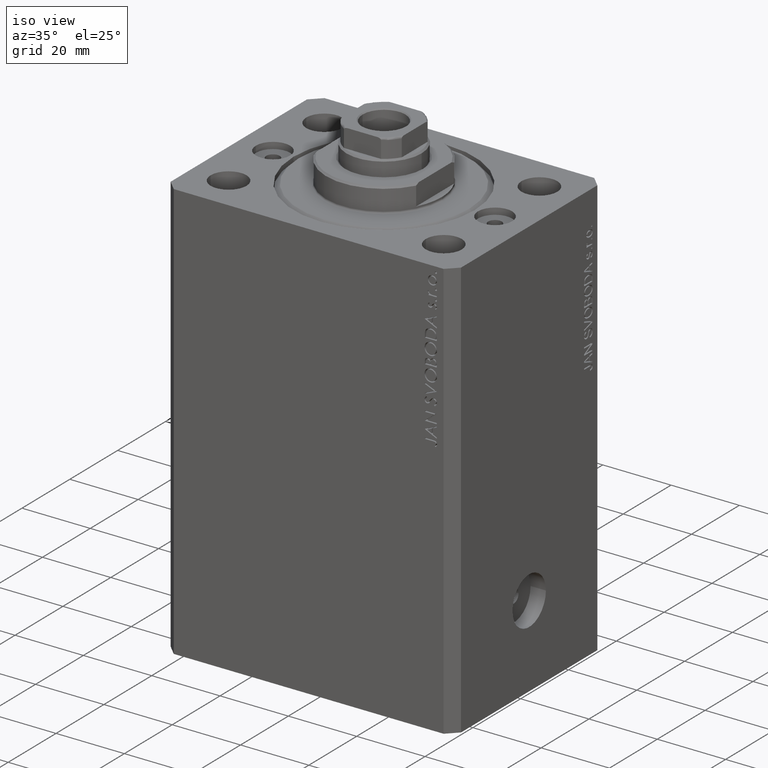
[diagram: clean part render]
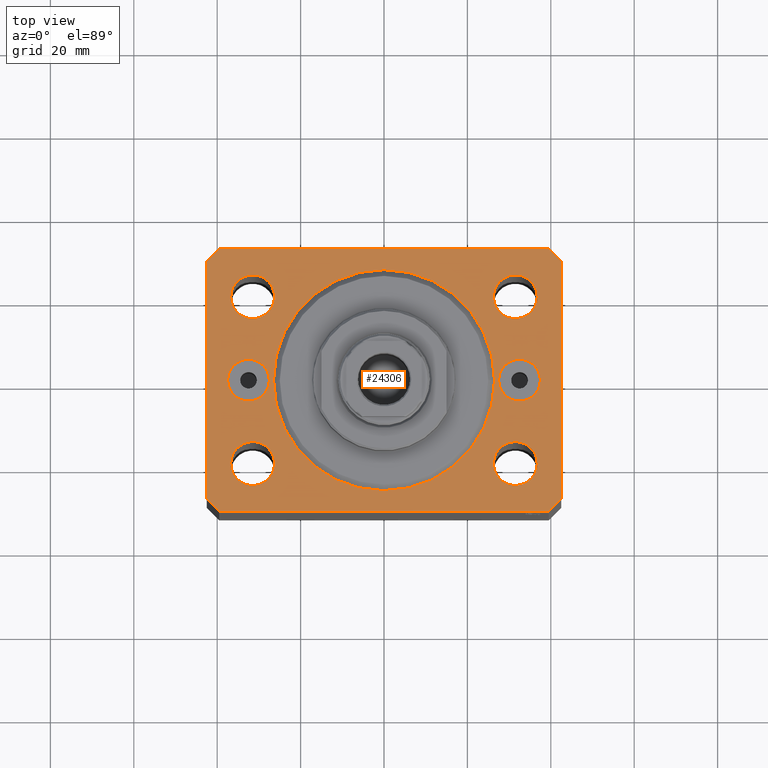
[diagram: tour spotlight — one face highlighted and labeled with its STEP entity id]
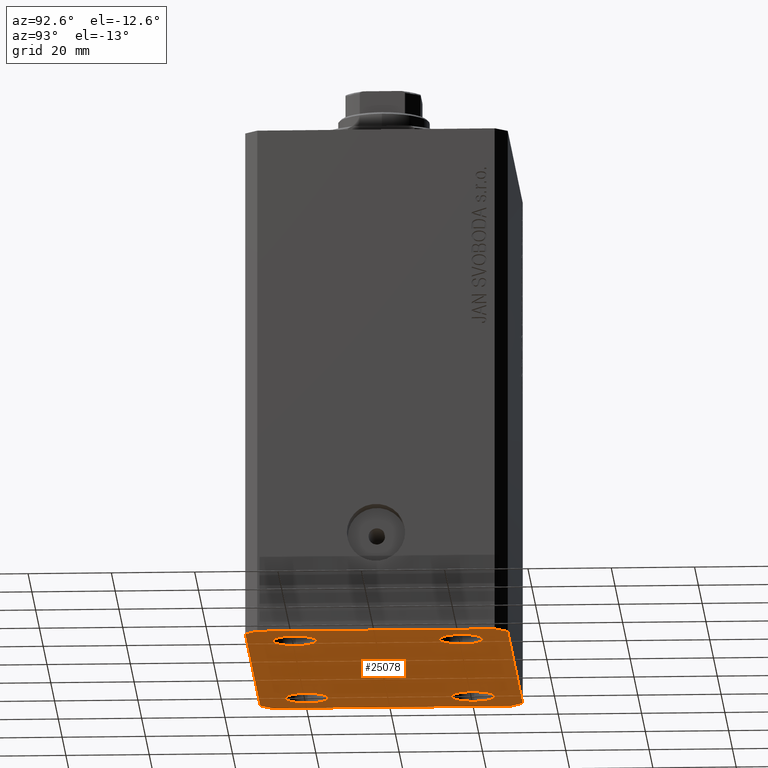
[diagram: tour spotlight — one face highlighted and labeled with its STEP entity id]
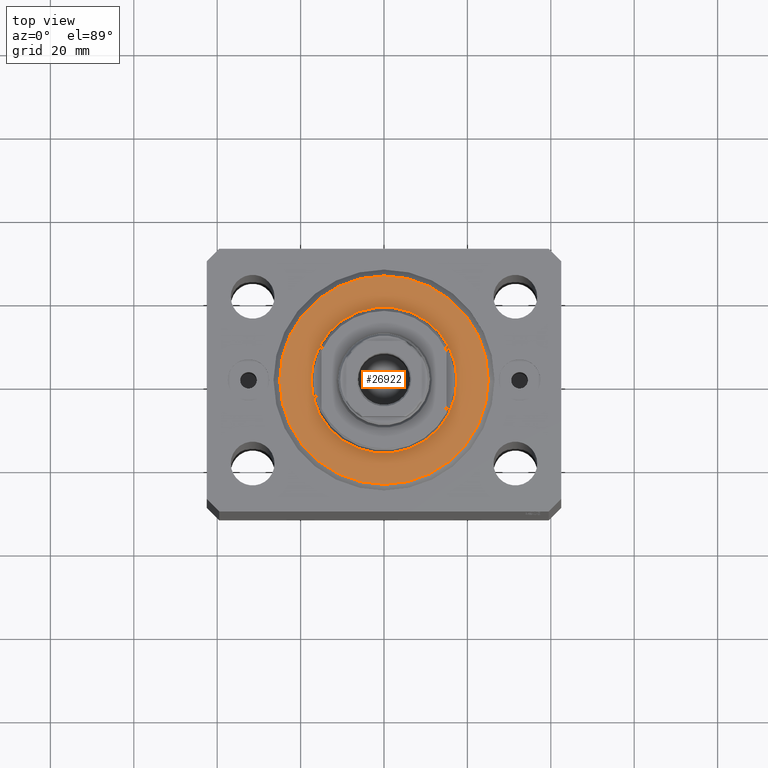
[diagram: tour spotlight — one face highlighted and labeled with its STEP entity id]
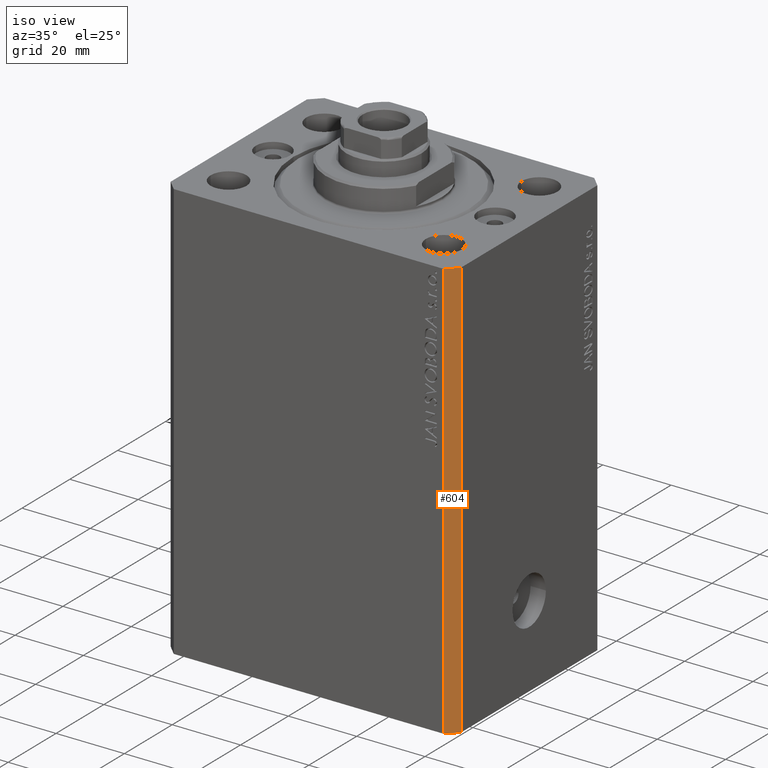
[diagram: tour spotlight — one face highlighted and labeled with its STEP entity id]
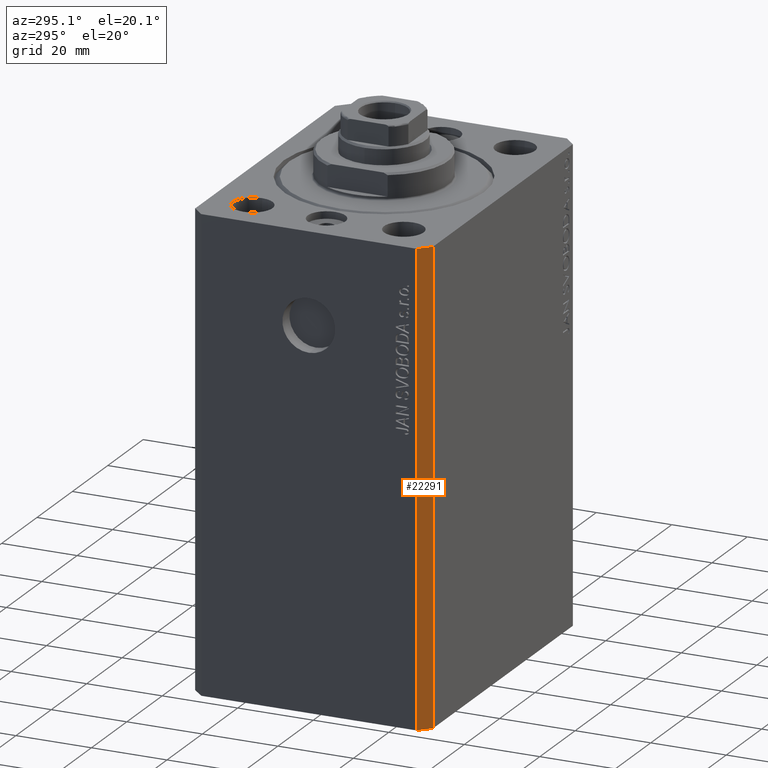
[diagram: tour spotlight — one face highlighted and labeled with its STEP entity id]
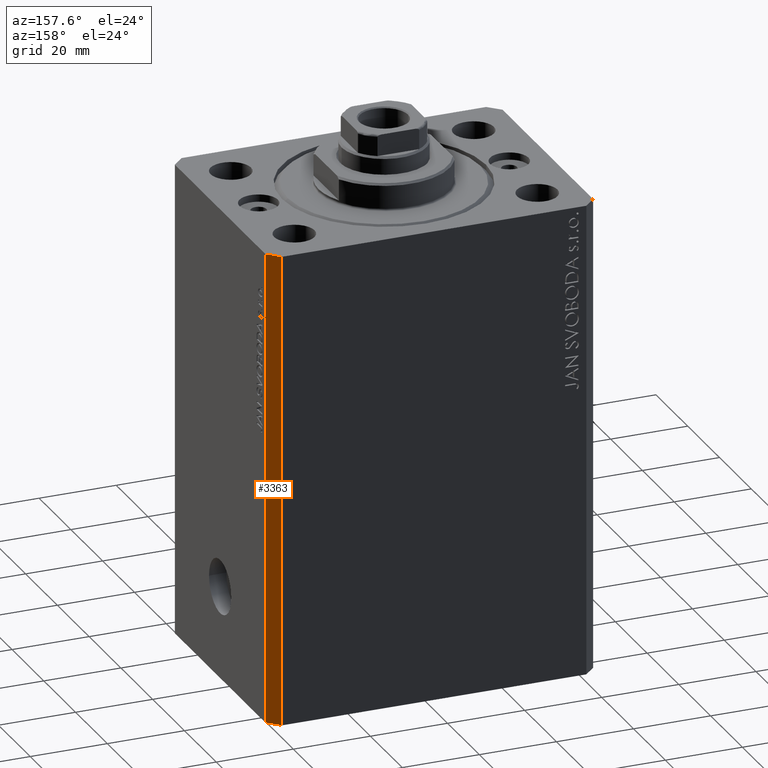
[diagram: tour spotlight — one face highlighted and labeled with its STEP entity id]
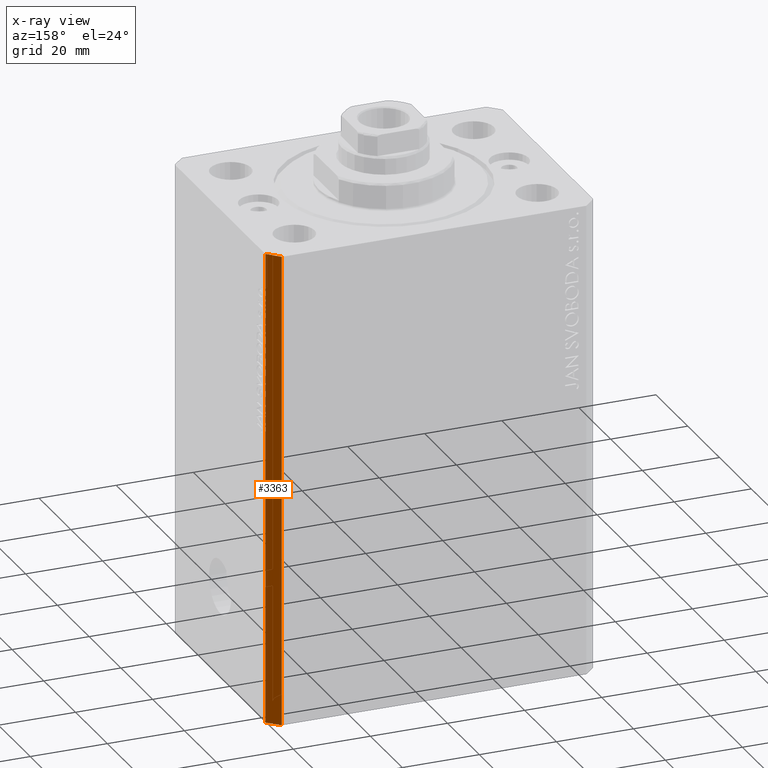
[diagram: x-ray of the same camera — body ghosted, this tour face saturated]
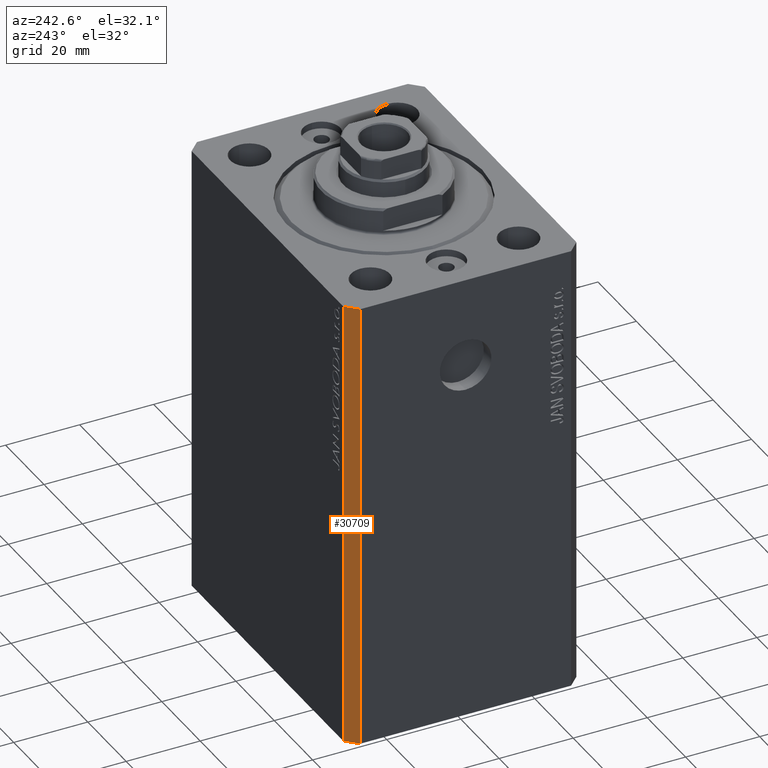
[diagram: tour spotlight — one face highlighted and labeled with its STEP entity id]
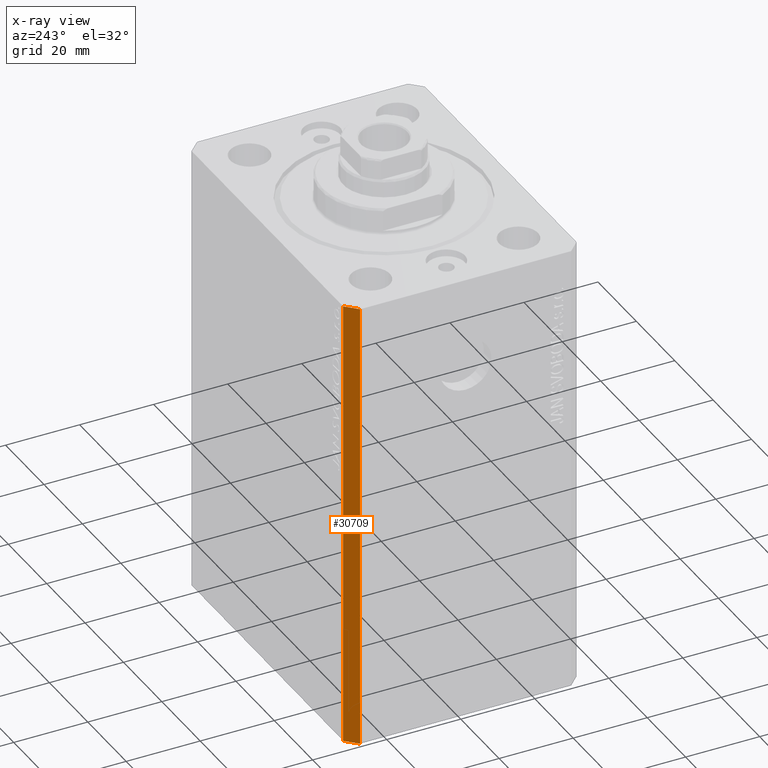
[diagram: x-ray of the same camera — body ghosted, this tour face saturated]
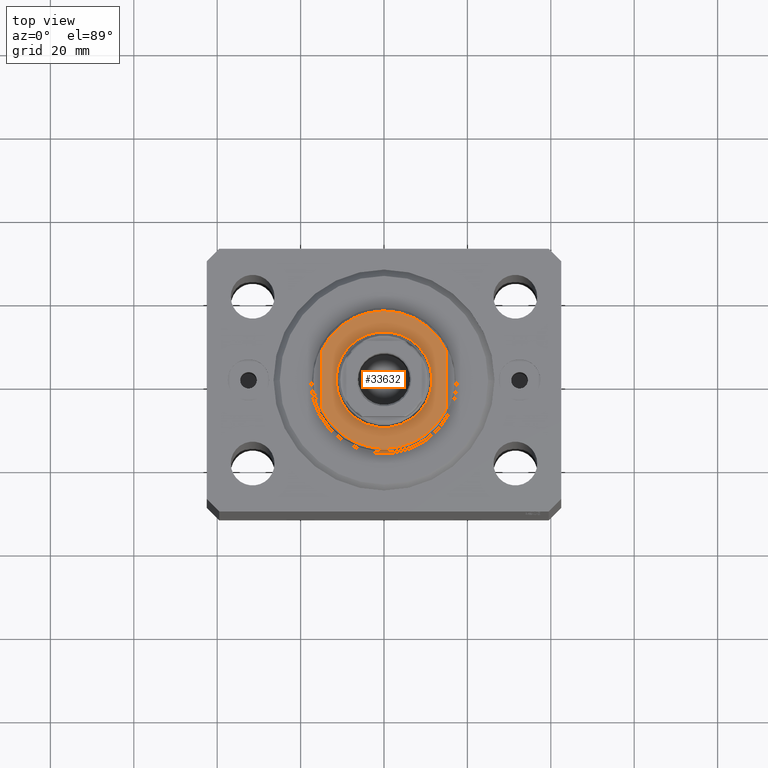
[diagram: tour spotlight — one face highlighted and labeled with its STEP entity id]
A machine part: a face-by-face anatomy tour. The part has 862 B-rep faces; the first image is the clean iso view, then the 8 largest visible faces are spotlighted one at a time (largest first), each with its STEP entity span.

Face 1 — top view, entity #24306. In plain terms, the highlighted planar face has unit normal (0, 0, 1).
Definition (entity closure, byte-faithful):
#16 = AXIS2_PLACEMENT_3D ( 'NONE', #7715, #18470, #22264 ) ;
#113 = AXIS2_PLACEMENT_3D ( 'NONE', #39409, #5545, #26396 ) ;
#278 = DIRECTION ( 'NONE',  ( 1.000000000000000000, 0.000000000000000000, 0.000000000000000000 ) ) ;
#521 = EDGE_CURVE ( 'NONE', #5828, #2277, #25285, .T. ) ;
#733 = ORIENTED_EDGE ( 'NONE', *, *, #9670, .F. ) ;
#884 = CARTESIAN_POINT ( 'NONE',  ( -32.50000000000000000, 0.000000000000000000, 0.000000000000000000 ) ) ;
#2246 = CIRCLE ( 'NONE', #113, 5.250000000000000888 ) ;
#2277 = VERTEX_POINT ( 'NONE', #24110 ) ;
#2566 = VERTEX_POINT ( 'NONE', #43569 ) ;
#3187 = CARTESIAN_POINT ( 'NONE',  ( -31.49999999999999289, -20.00000000000000355, 0.000000000000000000 ) ) ;
#3909 = AXIS2_PLACEMENT_3D ( 'NONE', #15612, #32411, #8886 ) ;
#4245 = DIRECTION ( 'NONE',  ( 1.000000000000000000, 0.000000000000000000, 0.000000000000000000 ) ) ;
#4256 = CIRCLE ( 'NONE', #43629, 5.249999999999997335 ) ;
#4271 = DIRECTION ( 'NONE',  ( 0.000000000000000000, 0.000000000000000000, 1.000000000000000000 ) ) ;
#4359 = LINE ( 'NONE', #5022, #9040 ) ;
#4491 = FACE_BOUND ( 'NONE', #6645, .T. ) ;
#4550 = DIRECTION ( 'NONE',  ( 0.000000000000000000, 0.000000000000000000, 1.000000000000000000 ) ) ;
#4684 = DIRECTION ( 'NONE',  ( 0.000000000000000000, -0.000000000000000000, -1.000000000000000000 ) ) ;
#4774 = EDGE_CURVE ( 'NONE', #2566, #32342, #9643, .T. ) ;
#5022 = CARTESIAN_POINT ( 'NONE',  ( 42.50000000000000711, -28.50000000000000355, 0.000000000000000000 ) ) ;
#5195 = VERTEX_POINT ( 'NONE', #23500 ) ;
#5545 = DIRECTION ( 'NONE',  ( 0.000000000000000000, 0.000000000000000000, 1.000000000000000000 ) ) ;
#5764 = VERTEX_POINT ( 'NONE', #31653 ) ;
#5828 = VERTEX_POINT ( 'NONE', #34816 ) ;
#5869 = CARTESIAN_POINT ( 'NONE',  ( 39.50000000000000711, -31.50000000000000000, 0.000000000000000000 ) ) ;
#6104 = ORIENTED_EDGE ( 'NONE', *, *, #27252, .F. ) ;
#6546 = AXIS2_PLACEMENT_3D ( 'NONE', #42002, #4550, #11295 ) ;
#6633 = EDGE_CURVE ( 'NONE', #26063, #5764, #14034, .T. ) ;
#6645 = EDGE_LOOP ( 'NONE', ( #40448, #15351 ) ) ;
#7124 = LINE ( 'NONE', #23502, #36913 ) ;
#7240 = CARTESIAN_POINT ( 'NONE',  ( -42.50000000000000000, 28.50000000000000000, 0.000000000000000000 ) ) ;
#7491 = ORIENTED_EDGE ( 'NONE', *, *, #34097, .T. ) ;
#7548 = DIRECTION ( 'NONE',  ( 0.000000000000000000, 0.000000000000000000, 1.000000000000000000 ) ) ;
#7653 = DIRECTION ( 'NONE',  ( 1.000000000000000000, 0.000000000000000000, -0.000000000000000000 ) ) ;
#7657 = AXIS2_PLACEMENT_3D ( 'NONE', #20237, #30757, #278 ) ;
#7715 = CARTESIAN_POINT ( 'NONE',  ( -31.49999999999999289, -20.00000000000000355, 0.000000000000000000 ) ) ;
#8132 = EDGE_CURVE ( 'NONE', #5195, #22188, #18868, .T. ) ;
#8211 = CARTESIAN_POINT ( 'NONE',  ( -39.50000000000000711, 31.50000000000000000, 0.000000000000000000 ) ) ;
#8233 = CARTESIAN_POINT ( 'NONE',  ( 42.50000000000000711, -28.50000000000000355, 0.000000000000000000 ) ) ;
#8344 = CARTESIAN_POINT ( 'NONE',  ( 36.74999999999999289, -20.00000000000000355, 0.000000000000000000 ) ) ;
#8650 = CARTESIAN_POINT ( 'NONE',  ( -42.50000000000000000, 28.50000000000000000, 0.000000000000000000 ) ) ;
#8749 = VERTEX_POINT ( 'NONE', #8233 ) ;
#8886 = DIRECTION ( 'NONE',  ( 1.000000000000000000, 0.000000000000000000, 0.000000000000000000 ) ) ;
#9036 = DIRECTION ( 'NONE',  ( 0.000000000000000000, 0.000000000000000000, 1.000000000000000000 ) ) ;
#9040 = VECTOR ( 'NONE', #27912, 1000.000000000000000 ) ;
#9571 = EDGE_LOOP ( 'NONE', ( #29423, #25060 ) ) ;
#9643 = CIRCLE ( 'NONE', #3909, 5.249999999999997335 ) ;
#9670 = EDGE_CURVE ( 'NONE', #18338, #34957, #43429, .T. ) ;
#9727 = ORIENTED_EDGE ( 'NONE', *, *, #24132, .F. ) ;
#9901 = DIRECTION ( 'NONE',  ( 0.000000000000000000, 0.000000000000000000, 1.000000000000000000 ) ) ;
#9968 = ORIENTED_EDGE ( 'NONE', *, *, #24770, .F. ) ;
#10129 = CIRCLE ( 'NONE', #17298, 26.50000000000000355 ) ;
#11118 = EDGE_CURVE ( 'NONE', #29073, #32457, #7124, .T. ) ;
#11243 = PLANE ( 'NONE',  #30152 ) ;
#11295 = DIRECTION ( 'NONE',  ( 1.000000000000000000, 0.000000000000000000, 0.000000000000000000 ) ) ;
#11580 = ORIENTED_EDGE ( 'NONE', *, *, #23966, .F. ) ;
#11675 = FACE_BOUND ( 'NONE', #17907, .T. ) ;
#11908 = ORIENTED_EDGE ( 'NONE', *, *, #26984, .T. ) ;
#11965 = VERTEX_POINT ( 'NONE', #7240 ) ;
#12026 = CARTESIAN_POINT ( 'NONE',  ( 26.50000000000000355, 0.000000000000000000, 0.000000000000000000 ) ) ;
#12178 = EDGE_CURVE ( 'NONE', #36154, #16676, #16912, .T. ) ;
#12279 = EDGE_LOOP ( 'NONE', ( #11580, #9968 ) ) ;
#12436 = EDGE_CURVE ( 'NONE', #8749, #29073, #4359, .T. ) ;
#13207 = VERTEX_POINT ( 'NONE', #25059 ) ;
#13492 = VERTEX_POINT ( 'NONE', #5869 ) ;
#13548 = ORIENTED_EDGE ( 'NONE', *, *, #6633, .F. ) ;
#13740 = CARTESIAN_POINT ( 'NONE',  ( 0.000000000000000000, 0.000000000000000000, 0.000000000000000000 ) ) ;
#14034 = CIRCLE ( 'NONE', #17583, 26.50000000000000355 ) ;
#14777 = CARTESIAN_POINT ( 'NONE',  ( -39.50000000000000711, 31.50000000000000000, 0.000000000000000000 ) ) ;
#14818 = FACE_BOUND ( 'NONE', #23785, .T. ) ;
#14861 = EDGE_CURVE ( 'NONE', #20549, #19827, #33407, .T. ) ;
#14936 = DIRECTION ( 'NONE',  ( -0.7071067811865471286, -0.7071067811865479058, 0.000000000000000000 ) ) ;
#14938 = DIRECTION ( 'NONE',  ( 1.000000000000000000, 0.000000000000000000, 0.000000000000000000 ) ) ;
#14995 = DIRECTION ( 'NONE',  ( 1.000000000000000000, 0.000000000000000000, 0.000000000000000000 ) ) ;
#15181 = VECTOR ( 'NONE', #16479, 1000.000000000000000 ) ;
#15351 = ORIENTED_EDGE ( 'NONE', *, *, #521, .T. ) ;
#15508 = DIRECTION ( 'NONE',  ( 0.7071067811865471286, -0.7071067811865479058, 0.000000000000000000 ) ) ;
#15612 = CARTESIAN_POINT ( 'NONE',  ( 31.49999999999999289, -20.00000000000000355, 0.000000000000000000 ) ) ;
#15856 = CIRCLE ( 'NONE', #6546, 5.250000000000000888 ) ;
#15948 = EDGE_CURVE ( 'NONE', #22188, #13492, #28480, .T. ) ;
#16479 = DIRECTION ( 'NONE',  ( 0.000000000000000000, -1.000000000000000000, 0.000000000000000000 ) ) ;
#16519 = VECTOR ( 'NONE', #22653, 1000.000000000000000 ) ;
#16676 = VERTEX_POINT ( 'NONE', #18726 ) ;
#16912 = CIRCLE ( 'NONE', #22628, 5.000000000000000888 ) ;
#16937 = CARTESIAN_POINT ( 'NONE',  ( -27.50000000000000000, 0.000000000000000000, 0.000000000000000000 ) ) ;
#17111 = CARTESIAN_POINT ( 'NONE',  ( -36.75000000000000000, 19.99999999999999645, 0.000000000000000000 ) ) ;
#17121 = CARTESIAN_POINT ( 'NONE',  ( -26.24999999999999289, -20.00000000000000355, 0.000000000000000000 ) ) ;
#17298 = AXIS2_PLACEMENT_3D ( 'NONE', #13740, #21721, #14995 ) ;
#17502 = DIRECTION ( 'NONE',  ( 0.000000000000000000, 0.000000000000000000, 1.000000000000000000 ) ) ;
#17583 = AXIS2_PLACEMENT_3D ( 'NONE', #37666, #7548, #14938 ) ;
#17907 = EDGE_LOOP ( 'NONE', ( #13548, #29794 ) ) ;
#17960 = FACE_BOUND ( 'NONE', #26102, .T. ) ;
#18063 = AXIS2_PLACEMENT_3D ( 'NONE', #22325, #36001, #18740 ) ;
#18301 = LINE ( 'NONE', #8211, #32197 ) ;
#18338 = VERTEX_POINT ( 'NONE', #17121 ) ;
#18349 = VECTOR ( 'NONE', #15508, 1000.000000000000000 ) ;
#18470 = DIRECTION ( 'NONE',  ( 0.000000000000000000, 0.000000000000000000, 1.000000000000000000 ) ) ;
#18726 = CARTESIAN_POINT ( 'NONE',  ( -37.50000000000000000, 6.123233995736768255E-16, 0.000000000000000000 ) ) ;
#18740 = DIRECTION ( 'NONE',  ( 1.000000000000000000, 0.000000000000000000, 0.000000000000000000 ) ) ;
#18868 = LINE ( 'NONE', #29610, #18349 ) ;
#18916 = CARTESIAN_POINT ( 'NONE',  ( 39.50000000000056843, 31.49999999999999289, 0.000000000000000000 ) ) ;
#19421 = EDGE_CURVE ( 'NONE', #19827, #20549, #4256, .T. ) ;
#19486 = ORIENTED_EDGE ( 'NONE', *, *, #15948, .T. ) ;
#19827 = VERTEX_POINT ( 'NONE', #35317 ) ;
#20234 = DIRECTION ( 'NONE',  ( 1.000000000000000000, 0.000000000000000000, 0.000000000000000000 ) ) ;
#20237 = CARTESIAN_POINT ( 'NONE',  ( 31.50000000000000000, 19.99999999999999289, 0.000000000000000000 ) ) ;
#20301 = AXIS2_PLACEMENT_3D ( 'NONE', #41680, #34294, #21506 ) ;
#20381 = CARTESIAN_POINT ( 'NONE',  ( 36.75000000000000000, 19.99999999999999289, 0.000000000000000000 ) ) ;
#20549 = VERTEX_POINT ( 'NONE', #20381 ) ;
#21330 = FACE_BOUND ( 'NONE', #9571, .T. ) ;
#21506 = DIRECTION ( 'NONE',  ( 1.000000000000000000, 0.000000000000000000, 0.000000000000000000 ) ) ;
#21721 = DIRECTION ( 'NONE',  ( 0.000000000000000000, 0.000000000000000000, 1.000000000000000000 ) ) ;
#22188 = VERTEX_POINT ( 'NONE', #30516 ) ;
#22264 = DIRECTION ( 'NONE',  ( 1.000000000000000000, 0.000000000000000000, 0.000000000000000000 ) ) ;
#22325 = CARTESIAN_POINT ( 'NONE',  ( -32.50000000000000000, 0.000000000000000000, 0.000000000000000000 ) ) ;
#22502 = LINE ( 'NONE', #18916, #36748 ) ;
#22628 = AXIS2_PLACEMENT_3D ( 'NONE', #884, #17502, #34759 ) ;
#22653 = DIRECTION ( 'NONE',  ( 0.7071067811865483499, 0.7071067811865466846, 0.000000000000000000 ) ) ;
#23434 = VECTOR ( 'NONE', #42598, 1000.000000000000000 ) ;
#23500 = CARTESIAN_POINT ( 'NONE',  ( -42.50000000000000000, -28.50000000000000000, 0.000000000000000000 ) ) ;
#23502 = CARTESIAN_POINT ( 'NONE',  ( 42.50000000000051870, 28.49999999999995381, 0.000000000000000000 ) ) ;
#23730 = CIRCLE ( 'NONE', #24440, 5.249999999999997335 ) ;
#23785 = EDGE_LOOP ( 'NONE', ( #35544, #43417 ) ) ;
#23884 = AXIS2_PLACEMENT_3D ( 'NONE', #41917, #4684, #4245 ) ;
#23966 = EDGE_CURVE ( 'NONE', #13207, #36318, #15856, .T. ) ;
#24110 = CARTESIAN_POINT ( 'NONE',  ( 37.50000000000000000, 0.000000000000000000, 0.000000000000000000 ) ) ;
#24132 = EDGE_CURVE ( 'NONE', #32342, #2566, #23730, .T. ) ;
#24306 = ADVANCED_FACE ( 'NONE', ( #41722, #38579, #14818, #17960, #42384, #11675, #21330, #4491 ), #11243, .T. ) ;
#24440 = AXIS2_PLACEMENT_3D ( 'NONE', #25845, #9036, #39749 ) ;
#24770 = EDGE_CURVE ( 'NONE', #36318, #13207, #2246, .T. ) ;
#25059 = CARTESIAN_POINT ( 'NONE',  ( -26.25000000000000000, 19.99999999999999645, 0.000000000000000000 ) ) ;
#25060 = ORIENTED_EDGE ( 'NONE', *, *, #34081, .F. ) ;
#25129 = ORIENTED_EDGE ( 'NONE', *, *, #12436, .T. ) ;
#25285 = CIRCLE ( 'NONE', #20301, 4.999999999999997335 ) ;
#25691 = LINE ( 'NONE', #8650, #15181 ) ;
#25845 = CARTESIAN_POINT ( 'NONE',  ( 31.49999999999999289, -20.00000000000000355, 0.000000000000000000 ) ) ;
#26063 = VERTEX_POINT ( 'NONE', #12026 ) ;
#26102 = EDGE_LOOP ( 'NONE', ( #9727, #31175 ) ) ;
#26396 = DIRECTION ( 'NONE',  ( 1.000000000000000000, 0.000000000000000000, 0.000000000000000000 ) ) ;
#26984 = EDGE_CURVE ( 'NONE', #27933, #11965, #18301, .T. ) ;
#27252 = EDGE_CURVE ( 'NONE', #34957, #18338, #27914, .T. ) ;
#27424 = ORIENTED_EDGE ( 'NONE', *, *, #36300, .T. ) ;
#27828 = CARTESIAN_POINT ( 'NONE',  ( 0.000000000000000000, 0.000000000000000000, 0.000000000000000000 ) ) ;
#27912 = DIRECTION ( 'NONE',  ( 8.886653596232072440E-15, 1.000000000000000000, 0.000000000000000000 ) ) ;
#27914 = CIRCLE ( 'NONE', #16, 5.250000000000000888 ) ;
#27933 = VERTEX_POINT ( 'NONE', #14777 ) ;
#28433 = EDGE_LOOP ( 'NONE', ( #27424, #11908, #7491, #40137, #19486, #37714, #25129, #30239 ) ) ;
#28480 = LINE ( 'NONE', #38794, #23434 ) ;
#29073 = VERTEX_POINT ( 'NONE', #43183 ) ;
#29423 = ORIENTED_EDGE ( 'NONE', *, *, #12178, .F. ) ;
#29474 = EDGE_CURVE ( 'NONE', #13492, #8749, #29807, .T. ) ;
#29610 = CARTESIAN_POINT ( 'NONE',  ( -42.50000000000000000, -28.50000000000000000, 0.000000000000000000 ) ) ;
#29794 = ORIENTED_EDGE ( 'NONE', *, *, #30321, .F. ) ;
#29807 = LINE ( 'NONE', #35880, #16519 ) ;
#30050 = CARTESIAN_POINT ( 'NONE',  ( 39.50000000000056843, 31.49999999999999289, 0.000000000000000000 ) ) ;
#30128 = EDGE_LOOP ( 'NONE', ( #733, #6104 ) ) ;
#30152 = AXIS2_PLACEMENT_3D ( 'NONE', #27828, #4271, #7653 ) ;
#30239 = ORIENTED_EDGE ( 'NONE', *, *, #11118, .T. ) ;
#30321 = EDGE_CURVE ( 'NONE', #5764, #26063, #10129, .T. ) ;
#30516 = CARTESIAN_POINT ( 'NONE',  ( -39.50000000000000711, -31.50000000000000000, 0.000000000000000000 ) ) ;
#30757 = DIRECTION ( 'NONE',  ( 0.000000000000000000, 0.000000000000000000, 1.000000000000000000 ) ) ;
#31175 = ORIENTED_EDGE ( 'NONE', *, *, #4774, .F. ) ;
#31266 = AXIS2_PLACEMENT_3D ( 'NONE', #3187, #44224, #20234 ) ;
#31653 = CARTESIAN_POINT ( 'NONE',  ( -26.50000000000000355, 3.245314017740485765E-15, 0.000000000000000000 ) ) ;
#32197 = VECTOR ( 'NONE', #14936, 1000.000000000000000 ) ;
#32342 = VERTEX_POINT ( 'NONE', #8344 ) ;
#32411 = DIRECTION ( 'NONE',  ( 0.000000000000000000, 0.000000000000000000, 1.000000000000000000 ) ) ;
#32457 = VERTEX_POINT ( 'NONE', #30050 ) ;
#33407 = CIRCLE ( 'NONE', #7657, 5.249999999999997335 ) ;
#34081 = EDGE_CURVE ( 'NONE', #16676, #36154, #34541, .T. ) ;
#34097 = EDGE_CURVE ( 'NONE', #11965, #5195, #25691, .T. ) ;
#34294 = DIRECTION ( 'NONE',  ( 0.000000000000000000, -0.000000000000000000, -1.000000000000000000 ) ) ;
#34541 = CIRCLE ( 'NONE', #18063, 5.000000000000000888 ) ;
#34759 = DIRECTION ( 'NONE',  ( 1.000000000000000000, 0.000000000000000000, 0.000000000000000000 ) ) ;
#34816 = CARTESIAN_POINT ( 'NONE',  ( 27.50000000000000355, 6.123233995736762338E-16, 0.000000000000000000 ) ) ;
#34957 = VERTEX_POINT ( 'NONE', #42513 ) ;
#35317 = CARTESIAN_POINT ( 'NONE',  ( 26.25000000000000355, 19.99999999999999289, 0.000000000000000000 ) ) ;
#35544 = ORIENTED_EDGE ( 'NONE', *, *, #14861, .F. ) ;
#35880 = CARTESIAN_POINT ( 'NONE',  ( 39.50000000000000711, -31.50000000000000000, 0.000000000000000000 ) ) ;
#36001 = DIRECTION ( 'NONE',  ( 0.000000000000000000, 0.000000000000000000, 1.000000000000000000 ) ) ;
#36154 = VERTEX_POINT ( 'NONE', #16937 ) ;
#36300 = EDGE_CURVE ( 'NONE', #32457, #27933, #22502, .T. ) ;
#36318 = VERTEX_POINT ( 'NONE', #17111 ) ;
#36748 = VECTOR ( 'NONE', #43347, 1000.000000000000000 ) ;
#36913 = VECTOR ( 'NONE', #44121, 1000.000000000000114 ) ;
#37643 = EDGE_CURVE ( 'NONE', #2277, #5828, #41772, .T. ) ;
#37666 = CARTESIAN_POINT ( 'NONE',  ( 0.000000000000000000, 0.000000000000000000, 0.000000000000000000 ) ) ;
#37714 = ORIENTED_EDGE ( 'NONE', *, *, #29474, .T. ) ;
#38579 = FACE_BOUND ( 'NONE', #12279, .T. ) ;
#38794 = CARTESIAN_POINT ( 'NONE',  ( -39.50000000000000711, -31.50000000000000000, 0.000000000000000000 ) ) ;
#39409 = CARTESIAN_POINT ( 'NONE',  ( -31.50000000000000000, 19.99999999999999645, 0.000000000000000000 ) ) ;
#39749 = DIRECTION ( 'NONE',  ( 1.000000000000000000, 0.000000000000000000, 0.000000000000000000 ) ) ;
#40137 = ORIENTED_EDGE ( 'NONE', *, *, #8132, .T. ) ;
#40175 = DIRECTION ( 'NONE',  ( 1.000000000000000000, 0.000000000000000000, 0.000000000000000000 ) ) ;
#40448 = ORIENTED_EDGE ( 'NONE', *, *, #37643, .T. ) ;
#40613 = CARTESIAN_POINT ( 'NONE',  ( 31.50000000000000000, 19.99999999999999289, 0.000000000000000000 ) ) ;
#41680 = CARTESIAN_POINT ( 'NONE',  ( 32.50000000000000000, 0.000000000000000000, 0.000000000000000000 ) ) ;
#41722 = FACE_OUTER_BOUND ( 'NONE', #28433, .T. ) ;
#41772 = CIRCLE ( 'NONE', #23884, 4.999999999999997335 ) ;
#41917 = CARTESIAN_POINT ( 'NONE',  ( 32.50000000000000000, 0.000000000000000000, 0.000000000000000000 ) ) ;
#42002 = CARTESIAN_POINT ( 'NONE',  ( -31.50000000000000000, 19.99999999999999645, 0.000000000000000000 ) ) ;
#42384 = FACE_BOUND ( 'NONE', #30128, .T. ) ;
#42513 = CARTESIAN_POINT ( 'NONE',  ( -36.74999999999999289, -20.00000000000000355, 0.000000000000000000 ) ) ;
#42598 = DIRECTION ( 'NONE',  ( 1.000000000000000000, 0.000000000000000000, 0.000000000000000000 ) ) ;
#43183 = CARTESIAN_POINT ( 'NONE',  ( 42.50000000000051870, 28.49999999999995381, 0.000000000000000000 ) ) ;
#43347 = DIRECTION ( 'NONE',  ( -1.000000000000000000, 8.783410004945795812E-17, 0.000000000000000000 ) ) ;
#43417 = ORIENTED_EDGE ( 'NONE', *, *, #19421, .F. ) ;
#43429 = CIRCLE ( 'NONE', #31266, 5.250000000000000888 ) ;
#43569 = CARTESIAN_POINT ( 'NONE',  ( 26.24999999999999645, -20.00000000000000355, 0.000000000000000000 ) ) ;
#43629 = AXIS2_PLACEMENT_3D ( 'NONE', #40613, #9901, #40175 ) ;
#44121 = DIRECTION ( 'NONE',  ( -0.7071067811865364705, 0.7071067811865584529, 0.000000000000000000 ) ) ;
#44224 = DIRECTION ( 'NONE',  ( 0.000000000000000000, 0.000000000000000000, 1.000000000000000000 ) ) ;

Face 2 — auxiliary view, entity #25078. In plain terms, the highlighted planar face has unit normal (0, 0, 1).
Definition (entity closure, byte-faithful):
#197 = DIRECTION ( 'NONE',  ( 1.000000000000000000, 0.000000000000000000, 0.000000000000000000 ) ) ;
#290 = DIRECTION ( 'NONE',  ( -0.000000000000000000, -0.000000000000000000, -1.000000000000000000 ) ) ;
#1091 = VERTEX_POINT ( 'NONE', #24492 ) ;
#1237 = EDGE_CURVE ( 'NONE', #27550, #42717, #9432, .T. ) ;
#1509 = ORIENTED_EDGE ( 'NONE', *, *, #18134, .F. ) ;
#1539 = CARTESIAN_POINT ( 'NONE',  ( 26.24999999999999645, -20.00000000000000355, -123.0000000000000000 ) ) ;
#1597 = DIRECTION ( 'NONE',  ( 1.000000000000000000, 0.000000000000000000, 0.000000000000000000 ) ) ;
#1681 = FACE_BOUND ( 'NONE', #31067, .T. ) ;
#1692 = VECTOR ( 'NONE', #31650, 1000.000000000000000 ) ;
#1836 = ORIENTED_EDGE ( 'NONE', *, *, #37384, .F. ) ;
#1903 = LINE ( 'NONE', #40243, #35155 ) ;
#2439 = CARTESIAN_POINT ( 'NONE',  ( -42.50000000000000000, 28.50000000000000000, -123.0000000000000000 ) ) ;
#2456 = DIRECTION ( 'NONE',  ( -0.7071067811865364705, 0.7071067811865584529, 0.000000000000000000 ) ) ;
#2676 = CARTESIAN_POINT ( 'NONE',  ( 42.50000000000051870, 28.49999999999995381, -123.0000000000000000 ) ) ;
#3107 = CARTESIAN_POINT ( 'NONE',  ( 31.49999999999999289, -20.00000000000000355, -123.0000000000000000 ) ) ;
#3392 = CIRCLE ( 'NONE', #43492, 5.249999999999997335 ) ;
#3713 = LINE ( 'NONE', #28362, #21496 ) ;
#4123 = DIRECTION ( 'NONE',  ( -0.000000000000000000, -0.000000000000000000, -1.000000000000000000 ) ) ;
#4663 = VERTEX_POINT ( 'NONE', #25525 ) ;
#4729 = CIRCLE ( 'NONE', #14031, 5.250000000000000888 ) ;
#5076 = EDGE_CURVE ( 'NONE', #4663, #31899, #15369, .T. ) ;
#5116 = CIRCLE ( 'NONE', #30174, 5.249999999999997335 ) ;
#5204 = DIRECTION ( 'NONE',  ( 1.000000000000000000, 0.000000000000000000, 0.000000000000000000 ) ) ;
#5364 = DIRECTION ( 'NONE',  ( 0.000000000000000000, -1.000000000000000000, 0.000000000000000000 ) ) ;
#5493 = FACE_OUTER_BOUND ( 'NONE', #35830, .T. ) ;
#5648 = VECTOR ( 'NONE', #5364, 1000.000000000000000 ) ;
#6087 = AXIS2_PLACEMENT_3D ( 'NONE', #6736, #16598, #13249 ) ;
#6734 = CARTESIAN_POINT ( 'NONE',  ( 42.50000000000000711, -28.50000000000000355, -123.0000000000000000 ) ) ;
#6736 = CARTESIAN_POINT ( 'NONE',  ( 31.49999999999999289, -20.00000000000000355, -123.0000000000000000 ) ) ;
#7306 = VECTOR ( 'NONE', #34945, 1000.000000000000000 ) ;
#7845 = CARTESIAN_POINT ( 'NONE',  ( -39.50000000000000711, 31.50000000000000000, -123.0000000000000000 ) ) ;
#8867 = FACE_BOUND ( 'NONE', #10632, .T. ) ;
#9432 = LINE ( 'NONE', #6734, #39667 ) ;
#9796 = AXIS2_PLACEMENT_3D ( 'NONE', #39514, #21600, #5204 ) ;
#9913 = ORIENTED_EDGE ( 'NONE', *, *, #23715, .F. ) ;
#10632 = EDGE_LOOP ( 'NONE', ( #24086, #25951 ) ) ;
#11471 = CARTESIAN_POINT ( 'NONE',  ( 42.50000000000000711, -28.50000000000000355, -123.0000000000000000 ) ) ;
#11935 = EDGE_CURVE ( 'NONE', #23579, #14005, #4729, .T. ) ;
#11937 = EDGE_LOOP ( 'NONE', ( #32436, #39963 ) ) ;
#12138 = DIRECTION ( 'NONE',  ( 1.000000000000000000, 0.000000000000000000, 0.000000000000000000 ) ) ;
#12811 = CARTESIAN_POINT ( 'NONE',  ( 42.50000000000051870, 28.49999999999995381, -123.0000000000000000 ) ) ;
#13249 = DIRECTION ( 'NONE',  ( 1.000000000000000000, 0.000000000000000000, 0.000000000000000000 ) ) ;
#14005 = VERTEX_POINT ( 'NONE', #39083 ) ;
#14031 = AXIS2_PLACEMENT_3D ( 'NONE', #24282, #290, #41542 ) ;
#14142 = LINE ( 'NONE', #7845, #19594 ) ;
#14542 = CARTESIAN_POINT ( 'NONE',  ( 39.50000000000000711, -31.50000000000000000, -123.0000000000000000 ) ) ;
#14704 = VERTEX_POINT ( 'NONE', #26309 ) ;
#14935 = FACE_BOUND ( 'NONE', #11937, .T. ) ;
#15369 = CIRCLE ( 'NONE', #6087, 5.249999999999997335 ) ;
#15598 = FACE_BOUND ( 'NONE', #21828, .T. ) ;
#15711 = EDGE_CURVE ( 'NONE', #22087, #33948, #36302, .T. ) ;
#16125 = LINE ( 'NONE', #2439, #5648 ) ;
#16142 = LINE ( 'NONE', #2676, #25844 ) ;
#16214 = EDGE_CURVE ( 'NONE', #31899, #4663, #3392, .T. ) ;
#16598 = DIRECTION ( 'NONE',  ( -0.000000000000000000, -0.000000000000000000, -1.000000000000000000 ) ) ;
#16686 = ORIENTED_EDGE ( 'NONE', *, *, #33072, .F. ) ;
#16707 = AXIS2_PLACEMENT_3D ( 'NONE', #42846, #29160, #12138 ) ;
#16792 = DIRECTION ( 'NONE',  ( -0.000000000000000000, -0.000000000000000000, -1.000000000000000000 ) ) ;
#16986 = CARTESIAN_POINT ( 'NONE',  ( -26.25000000000000000, 19.99999999999999645, -123.0000000000000000 ) ) ;
#17812 = DIRECTION ( 'NONE',  ( 1.000000000000000000, 0.000000000000000000, 0.000000000000000000 ) ) ;
#18134 = EDGE_CURVE ( 'NONE', #29193, #14704, #16125, .T. ) ;
#18438 = CARTESIAN_POINT ( 'NONE',  ( -39.50000000000000711, -31.50000000000000000, -123.0000000000000000 ) ) ;
#18646 = CARTESIAN_POINT ( 'NONE',  ( -31.50000000000000000, 19.99999999999999645, -123.0000000000000000 ) ) ;
#19180 = VERTEX_POINT ( 'NONE', #37539 ) ;
#19529 = AXIS2_PLACEMENT_3D ( 'NONE', #34853, #4123, #17812 ) ;
#19594 = VECTOR ( 'NONE', #21522, 1000.000000000000000 ) ;
#19751 = DIRECTION ( 'NONE',  ( -0.000000000000000000, -0.000000000000000000, -1.000000000000000000 ) ) ;
#19863 = EDGE_CURVE ( 'NONE', #14704, #42720, #3713, .T. ) ;
#19958 = DIRECTION ( 'NONE',  ( 8.886653596232072440E-15, 1.000000000000000000, 0.000000000000000000 ) ) ;
#20298 = CARTESIAN_POINT ( 'NONE',  ( -42.50000000000000000, 28.50000000000000000, -123.0000000000000000 ) ) ;
#21273 = LINE ( 'NONE', #14542, #7306 ) ;
#21496 = VECTOR ( 'NONE', #42044, 1000.000000000000000 ) ;
#21522 = DIRECTION ( 'NONE',  ( -0.7071067811865471286, -0.7071067811865479058, 0.000000000000000000 ) ) ;
#21600 = DIRECTION ( 'NONE',  ( -0.000000000000000000, -0.000000000000000000, -1.000000000000000000 ) ) ;
#21619 = AXIS2_PLACEMENT_3D ( 'NONE', #18646, #31872, #1597 ) ;
#21828 = EDGE_LOOP ( 'NONE', ( #30689, #33869 ) ) ;
#21882 = PLANE ( 'NONE',  #26442 ) ;
#22087 = VERTEX_POINT ( 'NONE', #37256 ) ;
#23221 = EDGE_CURVE ( 'NONE', #42717, #31795, #16142, .T. ) ;
#23579 = VERTEX_POINT ( 'NONE', #42266 ) ;
#23715 = EDGE_CURVE ( 'NONE', #31795, #33062, #1903, .T. ) ;
#24086 = ORIENTED_EDGE ( 'NONE', *, *, #5076, .F. ) ;
#24282 = CARTESIAN_POINT ( 'NONE',  ( -31.49999999999999289, -20.00000000000000355, -123.0000000000000000 ) ) ;
#24492 = CARTESIAN_POINT ( 'NONE',  ( 39.50000000000000711, -31.50000000000000000, -123.0000000000000000 ) ) ;
#24717 = LINE ( 'NONE', #18438, #1692 ) ;
#25078 = ADVANCED_FACE ( 'NONE', ( #15598, #8867, #1681, #14935, #5493 ), #21882, .F. ) ;
#25185 = ORIENTED_EDGE ( 'NONE', *, *, #37680, .F. ) ;
#25525 = CARTESIAN_POINT ( 'NONE',  ( 36.74999999999999289, -20.00000000000000355, -123.0000000000000000 ) ) ;
#25844 = VECTOR ( 'NONE', #2456, 1000.000000000000114 ) ;
#25915 = CARTESIAN_POINT ( 'NONE',  ( 26.25000000000000355, 19.99999999999999289, -123.0000000000000000 ) ) ;
#25951 = ORIENTED_EDGE ( 'NONE', *, *, #16214, .F. ) ;
#26309 = CARTESIAN_POINT ( 'NONE',  ( -42.50000000000000000, -28.50000000000000000, -123.0000000000000000 ) ) ;
#26442 = AXIS2_PLACEMENT_3D ( 'NONE', #35554, #36222, #32843 ) ;
#26696 = CARTESIAN_POINT ( 'NONE',  ( 31.50000000000000000, 19.99999999999999289, -123.0000000000000000 ) ) ;
#27507 = ORIENTED_EDGE ( 'NONE', *, *, #32487, .F. ) ;
#27550 = VERTEX_POINT ( 'NONE', #11471 ) ;
#28362 = CARTESIAN_POINT ( 'NONE',  ( -42.50000000000000000, -28.50000000000000000, -123.0000000000000000 ) ) ;
#28541 = ORIENTED_EDGE ( 'NONE', *, *, #42032, .F. ) ;
#29160 = DIRECTION ( 'NONE',  ( -0.000000000000000000, -0.000000000000000000, -1.000000000000000000 ) ) ;
#29193 = VERTEX_POINT ( 'NONE', #20298 ) ;
#30130 = DIRECTION ( 'NONE',  ( -1.000000000000000000, 8.783410004945795812E-17, 0.000000000000000000 ) ) ;
#30174 = AXIS2_PLACEMENT_3D ( 'NONE', #26696, #19751, #36797 ) ;
#30689 = ORIENTED_EDGE ( 'NONE', *, *, #11935, .F. ) ;
#30863 = ORIENTED_EDGE ( 'NONE', *, *, #1237, .F. ) ;
#31067 = EDGE_LOOP ( 'NONE', ( #27507, #28541 ) ) ;
#31590 = EDGE_CURVE ( 'NONE', #33948, #22087, #43792, .T. ) ;
#31650 = DIRECTION ( 'NONE',  ( 1.000000000000000000, 0.000000000000000000, 0.000000000000000000 ) ) ;
#31795 = VERTEX_POINT ( 'NONE', #35846 ) ;
#31872 = DIRECTION ( 'NONE',  ( -0.000000000000000000, -0.000000000000000000, -1.000000000000000000 ) ) ;
#31899 = VERTEX_POINT ( 'NONE', #1539 ) ;
#32436 = ORIENTED_EDGE ( 'NONE', *, *, #31590, .F. ) ;
#32487 = EDGE_CURVE ( 'NONE', #19180, #36103, #5116, .T. ) ;
#32843 = DIRECTION ( 'NONE',  ( 1.000000000000000000, 0.000000000000000000, -0.000000000000000000 ) ) ;
#33062 = VERTEX_POINT ( 'NONE', #44369 ) ;
#33072 = EDGE_CURVE ( 'NONE', #1091, #27550, #21273, .T. ) ;
#33869 = ORIENTED_EDGE ( 'NONE', *, *, #34277, .F. ) ;
#33948 = VERTEX_POINT ( 'NONE', #16986 ) ;
#34277 = EDGE_CURVE ( 'NONE', #14005, #23579, #38861, .T. ) ;
#34853 = CARTESIAN_POINT ( 'NONE',  ( -31.49999999999999289, -20.00000000000000355, -123.0000000000000000 ) ) ;
#34945 = DIRECTION ( 'NONE',  ( 0.7071067811865483499, 0.7071067811865466846, 0.000000000000000000 ) ) ;
#34985 = ORIENTED_EDGE ( 'NONE', *, *, #19863, .F. ) ;
#35155 = VECTOR ( 'NONE', #30130, 1000.000000000000000 ) ;
#35554 = CARTESIAN_POINT ( 'NONE',  ( 0.000000000000000000, 0.000000000000000000, -123.0000000000000000 ) ) ;
#35830 = EDGE_LOOP ( 'NONE', ( #9913, #38246, #30863, #16686, #1836, #34985, #1509, #25185 ) ) ;
#35846 = CARTESIAN_POINT ( 'NONE',  ( 39.50000000000056843, 31.49999999999999289, -123.0000000000000000 ) ) ;
#36103 = VERTEX_POINT ( 'NONE', #25915 ) ;
#36222 = DIRECTION ( 'NONE',  ( 0.000000000000000000, 0.000000000000000000, 1.000000000000000000 ) ) ;
#36302 = CIRCLE ( 'NONE', #9796, 5.250000000000000888 ) ;
#36797 = DIRECTION ( 'NONE',  ( 1.000000000000000000, 0.000000000000000000, 0.000000000000000000 ) ) ;
#37256 = CARTESIAN_POINT ( 'NONE',  ( -36.75000000000000000, 19.99999999999999645, -123.0000000000000000 ) ) ;
#37384 = EDGE_CURVE ( 'NONE', #42720, #1091, #24717, .T. ) ;
#37539 = CARTESIAN_POINT ( 'NONE',  ( 36.75000000000000000, 19.99999999999999289, -123.0000000000000000 ) ) ;
#37680 = EDGE_CURVE ( 'NONE', #33062, #29193, #14142, .T. ) ;
#38246 = ORIENTED_EDGE ( 'NONE', *, *, #23221, .F. ) ;
#38861 = CIRCLE ( 'NONE', #19529, 5.250000000000000888 ) ;
#39083 = CARTESIAN_POINT ( 'NONE',  ( -36.74999999999999289, -20.00000000000000355, -123.0000000000000000 ) ) ;
#39514 = CARTESIAN_POINT ( 'NONE',  ( -31.50000000000000000, 19.99999999999999645, -123.0000000000000000 ) ) ;
#39667 = VECTOR ( 'NONE', #19958, 1000.000000000000000 ) ;
#39963 = ORIENTED_EDGE ( 'NONE', *, *, #15711, .F. ) ;
#40243 = CARTESIAN_POINT ( 'NONE',  ( 39.50000000000056843, 31.49999999999999289, -123.0000000000000000 ) ) ;
#41542 = DIRECTION ( 'NONE',  ( 1.000000000000000000, 0.000000000000000000, 0.000000000000000000 ) ) ;
#42032 = EDGE_CURVE ( 'NONE', #36103, #19180, #43902, .T. ) ;
#42044 = DIRECTION ( 'NONE',  ( 0.7071067811865471286, -0.7071067811865479058, 0.000000000000000000 ) ) ;
#42266 = CARTESIAN_POINT ( 'NONE',  ( -26.24999999999999289, -20.00000000000000355, -123.0000000000000000 ) ) ;
#42717 = VERTEX_POINT ( 'NONE', #12811 ) ;
#42720 = VERTEX_POINT ( 'NONE', #44178 ) ;
#42846 = CARTESIAN_POINT ( 'NONE',  ( 31.50000000000000000, 19.99999999999999289, -123.0000000000000000 ) ) ;
#43492 = AXIS2_PLACEMENT_3D ( 'NONE', #3107, #16792, #197 ) ;
#43792 = CIRCLE ( 'NONE', #21619, 5.250000000000000888 ) ;
#43902 = CIRCLE ( 'NONE', #16707, 5.249999999999997335 ) ;
#44178 = CARTESIAN_POINT ( 'NONE',  ( -39.50000000000000711, -31.50000000000000000, -123.0000000000000000 ) ) ;
#44369 = CARTESIAN_POINT ( 'NONE',  ( -39.50000000000000711, 31.50000000000000000, -123.0000000000000000 ) ) ;

Face 3 — top view, entity #26922. In plain terms, the highlighted planar face has unit normal (0, 0, -1).
Definition (entity closure, byte-faithful):
#3727 = EDGE_LOOP ( 'NONE', ( #19318, #29450 ) ) ;
#4681 = CARTESIAN_POINT ( 'NONE',  ( 24.99999999999995026, 0.000000000000000000, 0.000000000000000000 ) ) ;
#4761 = CIRCLE ( 'NONE', #11220, 24.99999999999995026 ) ;
#5435 = DIRECTION ( 'NONE',  ( 1.000000000000000000, 0.000000000000000000, 0.000000000000000000 ) ) ;
#7891 = AXIS2_PLACEMENT_3D ( 'NONE', #27722, #41396, #21438 ) ;
#9719 = EDGE_CURVE ( 'NONE', #11460, #42934, #4761, .T. ) ;
#10151 = CARTESIAN_POINT ( 'NONE',  ( 0.000000000000000000, 0.000000000000000000, 0.000000000000000000 ) ) ;
#10842 = CIRCLE ( 'NONE', #12981, 17.50000000000000000 ) ;
#10911 = FACE_OUTER_BOUND ( 'NONE', #3727, .T. ) ;
#11220 = AXIS2_PLACEMENT_3D ( 'NONE', #10151, #33910, #40861 ) ;
#11460 = VERTEX_POINT ( 'NONE', #33700 ) ;
#12981 = AXIS2_PLACEMENT_3D ( 'NONE', #30074, #43543, #5435 ) ;
#13164 = DIRECTION ( 'NONE',  ( 1.000000000000000000, 0.000000000000000000, 0.000000000000000000 ) ) ;
#13613 = EDGE_LOOP ( 'NONE', ( #43534, #28854 ) ) ;
#14057 = FACE_BOUND ( 'NONE', #13613, .T. ) ;
#16576 = DIRECTION ( 'NONE',  ( -0.000000000000000000, -0.000000000000000000, -1.000000000000000000 ) ) ;
#16680 = CIRCLE ( 'NONE', #18118, 17.50000000000000000 ) ;
#17855 = PLANE ( 'NONE',  #7891 ) ;
#18118 = AXIS2_PLACEMENT_3D ( 'NONE', #23252, #37370, #13164 ) ;
#19318 = ORIENTED_EDGE ( 'NONE', *, *, #24527, .T. ) ;
#21438 = DIRECTION ( 'NONE',  ( 1.000000000000000000, 0.000000000000000000, -0.000000000000000000 ) ) ;
#22659 = CARTESIAN_POINT ( 'NONE',  ( 17.50000000000000000, 0.000000000000000000, 2.168404344971008868E-16 ) ) ;
#23252 = CARTESIAN_POINT ( 'NONE',  ( 0.000000000000000000, 0.000000000000000000, 0.000000000000000000 ) ) ;
#24173 = EDGE_CURVE ( 'NONE', #41405, #30362, #10842, .T. ) ;
#24527 = EDGE_CURVE ( 'NONE', #42934, #11460, #28012, .T. ) ;
#25964 = CARTESIAN_POINT ( 'NONE',  ( -17.50000000000000000, 2.143131898507868643E-15, 2.168404344971008868E-16 ) ) ;
#26922 = ADVANCED_FACE ( 'NONE', ( #14057, #10911 ), #17855, .F. ) ;
#27722 = CARTESIAN_POINT ( 'NONE',  ( 0.000000000000000000, 0.000000000000000000, 0.000000000000000000 ) ) ;
#28012 = CIRCLE ( 'NONE', #38040, 24.99999999999995026 ) ;
#28854 = ORIENTED_EDGE ( 'NONE', *, *, #40774, .T. ) ;
#29450 = ORIENTED_EDGE ( 'NONE', *, *, #9719, .T. ) ;
#30074 = CARTESIAN_POINT ( 'NONE',  ( 0.000000000000000000, 0.000000000000000000, 0.000000000000000000 ) ) ;
#30362 = VERTEX_POINT ( 'NONE', #25964 ) ;
#33700 = CARTESIAN_POINT ( 'NONE',  ( -24.99999999999995026, 3.153465507804431248E-15, 0.000000000000000000 ) ) ;
#33910 = DIRECTION ( 'NONE',  ( -0.000000000000000000, -0.000000000000000000, -1.000000000000000000 ) ) ;
#34061 = DIRECTION ( 'NONE',  ( 1.000000000000000000, 0.000000000000000000, 0.000000000000000000 ) ) ;
#37370 = DIRECTION ( 'NONE',  ( 0.000000000000000000, 0.000000000000000000, 1.000000000000000000 ) ) ;
#38040 = AXIS2_PLACEMENT_3D ( 'NONE', #40792, #16576, #34061 ) ;
#40774 = EDGE_CURVE ( 'NONE', #30362, #41405, #16680, .T. ) ;
#40792 = CARTESIAN_POINT ( 'NONE',  ( 0.000000000000000000, 0.000000000000000000, 0.000000000000000000 ) ) ;
#40861 = DIRECTION ( 'NONE',  ( 1.000000000000000000, 0.000000000000000000, 0.000000000000000000 ) ) ;
#41396 = DIRECTION ( 'NONE',  ( 0.000000000000000000, 0.000000000000000000, 1.000000000000000000 ) ) ;
#41405 = VERTEX_POINT ( 'NONE', #22659 ) ;
#42934 = VERTEX_POINT ( 'NONE', #4681 ) ;
#43534 = ORIENTED_EDGE ( 'NONE', *, *, #24173, .T. ) ;
#43543 = DIRECTION ( 'NONE',  ( 0.000000000000000000, 0.000000000000000000, 1.000000000000000000 ) ) ;

Face 4 — iso view, entity #604. In plain terms, the highlighted planar face has unit normal (0.7071, -0.7071, 0).
Definition (entity closure, byte-faithful):
#216 = CARTESIAN_POINT ( 'NONE',  ( 39.50000000000000711, -31.50000000000000000, -123.0000000000000000 ) ) ;
#604 = ADVANCED_FACE ( 'NONE', ( #14776 ), #34962, .T. ) ;
#1091 = VERTEX_POINT ( 'NONE', #24492 ) ;
#1623 = EDGE_LOOP ( 'NONE', ( #10293, #32373, #18360, #32010 ) ) ;
#1933 = EDGE_CURVE ( 'NONE', #27550, #8749, #11927, .T. ) ;
#5869 = CARTESIAN_POINT ( 'NONE',  ( 39.50000000000000711, -31.50000000000000000, 0.000000000000000000 ) ) ;
#7306 = VECTOR ( 'NONE', #34945, 1000.000000000000000 ) ;
#8233 = CARTESIAN_POINT ( 'NONE',  ( 42.50000000000000711, -28.50000000000000355, 0.000000000000000000 ) ) ;
#8749 = VERTEX_POINT ( 'NONE', #8233 ) ;
#10293 = ORIENTED_EDGE ( 'NONE', *, *, #29474, .F. ) ;
#11471 = CARTESIAN_POINT ( 'NONE',  ( 42.50000000000000711, -28.50000000000000355, -123.0000000000000000 ) ) ;
#11927 = LINE ( 'NONE', #39266, #34642 ) ;
#12726 = DIRECTION ( 'NONE',  ( 0.000000000000000000, 0.000000000000000000, 1.000000000000000000 ) ) ;
#13492 = VERTEX_POINT ( 'NONE', #5869 ) ;
#14542 = CARTESIAN_POINT ( 'NONE',  ( 39.50000000000000711, -31.50000000000000000, -123.0000000000000000 ) ) ;
#14776 = FACE_OUTER_BOUND ( 'NONE', #1623, .T. ) ;
#16519 = VECTOR ( 'NONE', #22653, 1000.000000000000000 ) ;
#18360 = ORIENTED_EDGE ( 'NONE', *, *, #33072, .T. ) ;
#18869 = DIRECTION ( 'NONE',  ( 0.000000000000000000, 0.000000000000000000, 1.000000000000000000 ) ) ;
#21273 = LINE ( 'NONE', #14542, #7306 ) ;
#21286 = DIRECTION ( 'NONE',  ( 0.7071067811865467956, -0.7071067811865483499, 0.000000000000000000 ) ) ;
#22653 = DIRECTION ( 'NONE',  ( 0.7071067811865483499, 0.7071067811865466846, 0.000000000000000000 ) ) ;
#24492 = CARTESIAN_POINT ( 'NONE',  ( 39.50000000000000711, -31.50000000000000000, -123.0000000000000000 ) ) ;
#24646 = DIRECTION ( 'NONE',  ( 0.7071067811865483499, 0.7071067811865467956, 0.000000000000000000 ) ) ;
#27550 = VERTEX_POINT ( 'NONE', #11471 ) ;
#29474 = EDGE_CURVE ( 'NONE', #13492, #8749, #29807, .T. ) ;
#29807 = LINE ( 'NONE', #35880, #16519 ) ;
#30206 = VECTOR ( 'NONE', #12726, 1000.000000000000000 ) ;
#32010 = ORIENTED_EDGE ( 'NONE', *, *, #1933, .T. ) ;
#32373 = ORIENTED_EDGE ( 'NONE', *, *, #33206, .F. ) ;
#33072 = EDGE_CURVE ( 'NONE', #1091, #27550, #21273, .T. ) ;
#33206 = EDGE_CURVE ( 'NONE', #1091, #13492, #43430, .T. ) ;
#33332 = CARTESIAN_POINT ( 'NONE',  ( 39.50000000000000711, -31.50000000000000000, -123.0000000000000000 ) ) ;
#34642 = VECTOR ( 'NONE', #18869, 1000.000000000000000 ) ;
#34945 = DIRECTION ( 'NONE',  ( 0.7071067811865483499, 0.7071067811865466846, 0.000000000000000000 ) ) ;
#34962 = PLANE ( 'NONE',  #36044 ) ;
#35880 = CARTESIAN_POINT ( 'NONE',  ( 39.50000000000000711, -31.50000000000000000, 0.000000000000000000 ) ) ;
#36044 = AXIS2_PLACEMENT_3D ( 'NONE', #216, #21286, #24646 ) ;
#39266 = CARTESIAN_POINT ( 'NONE',  ( 42.50000000000000711, -28.50000000000000355, -123.0000000000000000 ) ) ;
#43430 = LINE ( 'NONE', #33332, #30206 ) ;

Face 5 — auxiliary view, entity #22291. In plain terms, the highlighted planar face has unit normal (-0.7071, -0.7071, 0).
Definition (entity closure, byte-faithful):
#3066 = VECTOR ( 'NONE', #33572, 1000.000000000000000 ) ;
#3152 = EDGE_CURVE ( 'NONE', #42720, #22188, #29555, .T. ) ;
#3713 = LINE ( 'NONE', #28362, #21496 ) ;
#4266 = PLANE ( 'NONE',  #37981 ) ;
#5195 = VERTEX_POINT ( 'NONE', #23500 ) ;
#7812 = ORIENTED_EDGE ( 'NONE', *, *, #8132, .F. ) ;
#8132 = EDGE_CURVE ( 'NONE', #5195, #22188, #18868, .T. ) ;
#8695 = EDGE_LOOP ( 'NONE', ( #7812, #41346, #22974, #25073 ) ) ;
#9837 = CARTESIAN_POINT ( 'NONE',  ( -39.50000000000000711, -31.50000000000000000, -123.0000000000000000 ) ) ;
#13417 = LINE ( 'NONE', #22826, #3066 ) ;
#14704 = VERTEX_POINT ( 'NONE', #26309 ) ;
#15508 = DIRECTION ( 'NONE',  ( 0.7071067811865471286, -0.7071067811865479058, 0.000000000000000000 ) ) ;
#18349 = VECTOR ( 'NONE', #15508, 1000.000000000000000 ) ;
#18868 = LINE ( 'NONE', #29610, #18349 ) ;
#19863 = EDGE_CURVE ( 'NONE', #14704, #42720, #3713, .T. ) ;
#21496 = VECTOR ( 'NONE', #42044, 1000.000000000000000 ) ;
#22188 = VERTEX_POINT ( 'NONE', #30516 ) ;
#22291 = ADVANCED_FACE ( 'NONE', ( #42380 ), #4266, .T. ) ;
#22826 = CARTESIAN_POINT ( 'NONE',  ( -42.50000000000000000, -28.50000000000000000, -123.0000000000000000 ) ) ;
#22835 = DIRECTION ( 'NONE',  ( 0.000000000000000000, 0.000000000000000000, 1.000000000000000000 ) ) ;
#22974 = ORIENTED_EDGE ( 'NONE', *, *, #19863, .T. ) ;
#23500 = CARTESIAN_POINT ( 'NONE',  ( -42.50000000000000000, -28.50000000000000000, 0.000000000000000000 ) ) ;
#23949 = VECTOR ( 'NONE', #22835, 1000.000000000000000 ) ;
#25073 = ORIENTED_EDGE ( 'NONE', *, *, #3152, .T. ) ;
#26309 = CARTESIAN_POINT ( 'NONE',  ( -42.50000000000000000, -28.50000000000000000, -123.0000000000000000 ) ) ;
#28260 = DIRECTION ( 'NONE',  ( 0.7071067811865472397, -0.7071067811865479058, 0.000000000000000000 ) ) ;
#28362 = CARTESIAN_POINT ( 'NONE',  ( -42.50000000000000000, -28.50000000000000000, -123.0000000000000000 ) ) ;
#29136 = CARTESIAN_POINT ( 'NONE',  ( -42.50000000000000000, -28.50000000000000000, -123.0000000000000000 ) ) ;
#29555 = LINE ( 'NONE', #9837, #23949 ) ;
#29610 = CARTESIAN_POINT ( 'NONE',  ( -42.50000000000000000, -28.50000000000000000, 0.000000000000000000 ) ) ;
#30516 = CARTESIAN_POINT ( 'NONE',  ( -39.50000000000000711, -31.50000000000000000, 0.000000000000000000 ) ) ;
#33572 = DIRECTION ( 'NONE',  ( 0.000000000000000000, 0.000000000000000000, 1.000000000000000000 ) ) ;
#36516 = EDGE_CURVE ( 'NONE', #14704, #5195, #13417, .T. ) ;
#37981 = AXIS2_PLACEMENT_3D ( 'NONE', #29136, #38796, #28260 ) ;
#38796 = DIRECTION ( 'NONE',  ( -0.7071067811865479058, -0.7071067811865472397, 0.000000000000000000 ) ) ;
#41346 = ORIENTED_EDGE ( 'NONE', *, *, #36516, .F. ) ;
#42044 = DIRECTION ( 'NONE',  ( 0.7071067811865471286, -0.7071067811865479058, 0.000000000000000000 ) ) ;
#42380 = FACE_OUTER_BOUND ( 'NONE', #8695, .T. ) ;
#42720 = VERTEX_POINT ( 'NONE', #44178 ) ;
#44178 = CARTESIAN_POINT ( 'NONE',  ( -39.50000000000000711, -31.50000000000000000, -123.0000000000000000 ) ) ;

Face 6 — auxiliary view, entity #3363. An x-ray twin of the same camera follows (body ghosted, this face saturated) — the face is partly hidden behind the body. In plain terms, the highlighted planar face has unit normal (0.7071, 0.7071, 0).
Definition (entity closure, byte-faithful):
#972 = ORIENTED_EDGE ( 'NONE', *, *, #23221, .T. ) ;
#2456 = DIRECTION ( 'NONE',  ( -0.7071067811865364705, 0.7071067811865584529, 0.000000000000000000 ) ) ;
#2561 = DIRECTION ( 'NONE',  ( 0.000000000000000000, 0.000000000000000000, 1.000000000000000000 ) ) ;
#2676 = CARTESIAN_POINT ( 'NONE',  ( 42.50000000000051870, 28.49999999999995381, -123.0000000000000000 ) ) ;
#3363 = ADVANCED_FACE ( 'NONE', ( #11381 ), #38718, .T. ) ;
#3438 = DIRECTION ( 'NONE',  ( -0.7071067811865364705, 0.7071067811865585639, 0.000000000000000000 ) ) ;
#4219 = LINE ( 'NONE', #37435, #17709 ) ;
#4327 = VECTOR ( 'NONE', #2561, 1000.000000000000000 ) ;
#7124 = LINE ( 'NONE', #23502, #36913 ) ;
#11118 = EDGE_CURVE ( 'NONE', #29073, #32457, #7124, .T. ) ;
#11381 = FACE_OUTER_BOUND ( 'NONE', #40003, .T. ) ;
#12811 = CARTESIAN_POINT ( 'NONE',  ( 42.50000000000051870, 28.49999999999995381, -123.0000000000000000 ) ) ;
#13673 = DIRECTION ( 'NONE',  ( 0.000000000000000000, 0.000000000000000000, 1.000000000000000000 ) ) ;
#16142 = LINE ( 'NONE', #2676, #25844 ) ;
#16253 = ORIENTED_EDGE ( 'NONE', *, *, #17037, .T. ) ;
#17037 = EDGE_CURVE ( 'NONE', #31795, #32457, #4219, .T. ) ;
#17709 = VECTOR ( 'NONE', #13673, 1000.000000000000000 ) ;
#21734 = EDGE_CURVE ( 'NONE', #42717, #29073, #39798, .T. ) ;
#23221 = EDGE_CURVE ( 'NONE', #42717, #31795, #16142, .T. ) ;
#23502 = CARTESIAN_POINT ( 'NONE',  ( 42.50000000000051870, 28.49999999999995381, 0.000000000000000000 ) ) ;
#23623 = CARTESIAN_POINT ( 'NONE',  ( 42.50000000000051870, 28.49999999999995381, -123.0000000000000000 ) ) ;
#25844 = VECTOR ( 'NONE', #2456, 1000.000000000000114 ) ;
#29073 = VERTEX_POINT ( 'NONE', #43183 ) ;
#30050 = CARTESIAN_POINT ( 'NONE',  ( 39.50000000000056843, 31.49999999999999289, 0.000000000000000000 ) ) ;
#30363 = ORIENTED_EDGE ( 'NONE', *, *, #21734, .F. ) ;
#30777 = DIRECTION ( 'NONE',  ( 0.7071067811865585639, 0.7071067811865364705, -0.000000000000000000 ) ) ;
#31795 = VERTEX_POINT ( 'NONE', #35846 ) ;
#32457 = VERTEX_POINT ( 'NONE', #30050 ) ;
#33273 = CARTESIAN_POINT ( 'NONE',  ( 42.50000000000051870, 28.49999999999995381, -123.0000000000000000 ) ) ;
#35846 = CARTESIAN_POINT ( 'NONE',  ( 39.50000000000056843, 31.49999999999999289, -123.0000000000000000 ) ) ;
#36913 = VECTOR ( 'NONE', #44121, 1000.000000000000114 ) ;
#37435 = CARTESIAN_POINT ( 'NONE',  ( 39.50000000000056843, 31.49999999999999289, -123.0000000000000000 ) ) ;
#37566 = AXIS2_PLACEMENT_3D ( 'NONE', #23623, #30777, #3438 ) ;
#38718 = PLANE ( 'NONE',  #37566 ) ;
#39798 = LINE ( 'NONE', #33273, #4327 ) ;
#40003 = EDGE_LOOP ( 'NONE', ( #41669, #30363, #972, #16253 ) ) ;
#41669 = ORIENTED_EDGE ( 'NONE', *, *, #11118, .F. ) ;
#42717 = VERTEX_POINT ( 'NONE', #12811 ) ;
#43183 = CARTESIAN_POINT ( 'NONE',  ( 42.50000000000051870, 28.49999999999995381, 0.000000000000000000 ) ) ;
#44121 = DIRECTION ( 'NONE',  ( -0.7071067811865364705, 0.7071067811865584529, 0.000000000000000000 ) ) ;

Face 7 — auxiliary view, entity #30709. An x-ray twin of the same camera follows (body ghosted, this face saturated) — the face is partly hidden behind the body. In plain terms, the highlighted planar face has unit normal (-0.7071, 0.7071, 0).
Definition (entity closure, byte-faithful):
#426 = DIRECTION ( 'NONE',  ( 0.000000000000000000, 0.000000000000000000, 1.000000000000000000 ) ) ;
#1103 = DIRECTION ( 'NONE',  ( 0.000000000000000000, 0.000000000000000000, 1.000000000000000000 ) ) ;
#4894 = LINE ( 'NONE', #22386, #32438 ) ;
#7240 = CARTESIAN_POINT ( 'NONE',  ( -42.50000000000000000, 28.50000000000000000, 0.000000000000000000 ) ) ;
#7845 = CARTESIAN_POINT ( 'NONE',  ( -39.50000000000000711, 31.50000000000000000, -123.0000000000000000 ) ) ;
#8211 = CARTESIAN_POINT ( 'NONE',  ( -39.50000000000000711, 31.50000000000000000, 0.000000000000000000 ) ) ;
#9590 = DIRECTION ( 'NONE',  ( -0.7071067811865472397, -0.7071067811865479058, 0.000000000000000000 ) ) ;
#10039 = PLANE ( 'NONE',  #21590 ) ;
#10572 = VECTOR ( 'NONE', #426, 1000.000000000000000 ) ;
#11965 = VERTEX_POINT ( 'NONE', #7240 ) ;
#12384 = ORIENTED_EDGE ( 'NONE', *, *, #42332, .T. ) ;
#14142 = LINE ( 'NONE', #7845, #19594 ) ;
#14777 = CARTESIAN_POINT ( 'NONE',  ( -39.50000000000000711, 31.50000000000000000, 0.000000000000000000 ) ) ;
#14936 = DIRECTION ( 'NONE',  ( -0.7071067811865471286, -0.7071067811865479058, 0.000000000000000000 ) ) ;
#16974 = EDGE_CURVE ( 'NONE', #33062, #27933, #38092, .T. ) ;
#18301 = LINE ( 'NONE', #8211, #32197 ) ;
#19594 = VECTOR ( 'NONE', #21522, 1000.000000000000000 ) ;
#20298 = CARTESIAN_POINT ( 'NONE',  ( -42.50000000000000000, 28.50000000000000000, -123.0000000000000000 ) ) ;
#20939 = ORIENTED_EDGE ( 'NONE', *, *, #37680, .T. ) ;
#21522 = DIRECTION ( 'NONE',  ( -0.7071067811865471286, -0.7071067811865479058, 0.000000000000000000 ) ) ;
#21590 = AXIS2_PLACEMENT_3D ( 'NONE', #23709, #37393, #9590 ) ;
#22386 = CARTESIAN_POINT ( 'NONE',  ( -42.50000000000000000, 28.50000000000000000, -123.0000000000000000 ) ) ;
#23709 = CARTESIAN_POINT ( 'NONE',  ( -39.50000000000000711, 31.50000000000000000, -123.0000000000000000 ) ) ;
#26984 = EDGE_CURVE ( 'NONE', #27933, #11965, #18301, .T. ) ;
#27933 = VERTEX_POINT ( 'NONE', #14777 ) ;
#29193 = VERTEX_POINT ( 'NONE', #20298 ) ;
#29976 = FACE_OUTER_BOUND ( 'NONE', #38097, .T. ) ;
#30709 = ADVANCED_FACE ( 'NONE', ( #29976 ), #10039, .T. ) ;
#30910 = CARTESIAN_POINT ( 'NONE',  ( -39.50000000000000711, 31.50000000000000000, -123.0000000000000000 ) ) ;
#32197 = VECTOR ( 'NONE', #14936, 1000.000000000000000 ) ;
#32438 = VECTOR ( 'NONE', #1103, 1000.000000000000000 ) ;
#33062 = VERTEX_POINT ( 'NONE', #44369 ) ;
#37393 = DIRECTION ( 'NONE',  ( -0.7071067811865479058, 0.7071067811865472397, 0.000000000000000000 ) ) ;
#37680 = EDGE_CURVE ( 'NONE', #33062, #29193, #14142, .T. ) ;
#38092 = LINE ( 'NONE', #30910, #10572 ) ;
#38097 = EDGE_LOOP ( 'NONE', ( #43966, #41437, #20939, #12384 ) ) ;
#41437 = ORIENTED_EDGE ( 'NONE', *, *, #16974, .F. ) ;
#42332 = EDGE_CURVE ( 'NONE', #29193, #11965, #4894, .T. ) ;
#43966 = ORIENTED_EDGE ( 'NONE', *, *, #26984, .F. ) ;
#44369 = CARTESIAN_POINT ( 'NONE',  ( -39.50000000000000711, 31.50000000000000000, -123.0000000000000000 ) ) ;

Face 8 — top view, entity #33632. In plain terms, the highlighted planar face has unit normal (0, 0, 1).
Definition (entity closure, byte-faithful):
#295 = AXIS2_PLACEMENT_3D ( 'NONE', #20018, #6575, #37072 ) ;
#307 = CARTESIAN_POINT ( 'NONE',  ( 0.000000000000000000, 0.000000000000000000, -7.000000000000000000 ) ) ;
#1963 = EDGE_CURVE ( 'NONE', #32663, #28319, #29166, .T. ) ;
#2130 = CARTESIAN_POINT ( 'NONE',  ( 11.49999999999999645, 1.408343819019455781E-15, -7.000000000000000000 ) ) ;
#2307 = AXIS2_PLACEMENT_3D ( 'NONE', #37667, #33167, #3118 ) ;
#2463 = AXIS2_PLACEMENT_3D ( 'NONE', #28015, #24663, #34755 ) ;
#2932 = EDGE_CURVE ( 'NONE', #31831, #28319, #23220, .T. ) ;
#3118 = DIRECTION ( 'NONE',  ( -1.000000000000000000, 0.000000000000000000, -0.000000000000000000 ) ) ;
#3886 = DIRECTION ( 'NONE',  ( -1.000000000000000000, 0.000000000000000000, 0.000000000000000000 ) ) ;
#3998 = AXIS2_PLACEMENT_3D ( 'NONE', #21632, #18927, #11990 ) ;
#6575 = DIRECTION ( 'NONE',  ( -0.000000000000000000, -0.000000000000000000, 1.000000000000000000 ) ) ;
#8974 = EDGE_CURVE ( 'NONE', #35389, #12395, #11186, .T. ) ;
#11186 = CIRCLE ( 'NONE', #3998, 11.49999999999999645 ) ;
#11990 = DIRECTION ( 'NONE',  ( -1.000000000000000000, 0.000000000000000000, 0.000000000000000000 ) ) ;
#12395 = VERTEX_POINT ( 'NONE', #33753 ) ;
#12474 = VECTOR ( 'NONE', #43948, 1000.000000000000000 ) ;
#13499 = CARTESIAN_POINT ( 'NONE',  ( -14.99999999999999645, 6.873863542433781504, -7.000000000000000000 ) ) ;
#14380 = ORIENTED_EDGE ( 'NONE', *, *, #42650, .T. ) ;
#15553 = EDGE_CURVE ( 'NONE', #32663, #28029, #33436, .T. ) ;
#15880 = CARTESIAN_POINT ( 'NONE',  ( 14.99999999999999645, 6.873863542433781504, -7.000000000000000000 ) ) ;
#16057 = LINE ( 'NONE', #43402, #38928 ) ;
#16850 = EDGE_LOOP ( 'NONE', ( #14380, #17033 ) ) ;
#17033 = ORIENTED_EDGE ( 'NONE', *, *, #8974, .T. ) ;
#17584 = ORIENTED_EDGE ( 'NONE', *, *, #36864, .T. ) ;
#17795 = DIRECTION ( 'NONE',  ( 0.000000000000000000, 0.000000000000000000, -1.000000000000000000 ) ) ;
#18927 = DIRECTION ( 'NONE',  ( -0.000000000000000000, -0.000000000000000000, 1.000000000000000000 ) ) ;
#20018 = CARTESIAN_POINT ( 'NONE',  ( 0.000000000000000000, 0.000000000000000000, -7.000000000000000000 ) ) ;
#21632 = CARTESIAN_POINT ( 'NONE',  ( 0.000000000000000000, 0.000000000000000000, -7.000000000000000000 ) ) ;
#23220 = CIRCLE ( 'NONE', #2463, 16.50000000000000711 ) ;
#23552 = CARTESIAN_POINT ( 'NONE',  ( -15.00000000000000000, -42.42640687119285303, -7.000000000000000000 ) ) ;
#23980 = PLANE ( 'NONE',  #2307 ) ;
#24663 = DIRECTION ( 'NONE',  ( 0.000000000000000000, 0.000000000000000000, -1.000000000000000000 ) ) ;
#25754 = CARTESIAN_POINT ( 'NONE',  ( 14.99999999999999645, -6.873863542433781504, -7.000000000000000000 ) ) ;
#26822 = ORIENTED_EDGE ( 'NONE', *, *, #15553, .T. ) ;
#26890 = FACE_OUTER_BOUND ( 'NONE', #40527, .T. ) ;
#26985 = AXIS2_PLACEMENT_3D ( 'NONE', #307, #17795, #3886 ) ;
#28015 = CARTESIAN_POINT ( 'NONE',  ( 0.000000000000000000, 0.000000000000000000, -7.000000000000000000 ) ) ;
#28029 = VERTEX_POINT ( 'NONE', #15880 ) ;
#28319 = VERTEX_POINT ( 'NONE', #41745 ) ;
#29166 = LINE ( 'NONE', #23552, #12474 ) ;
#30025 = FACE_BOUND ( 'NONE', #16850, .T. ) ;
#31831 = VERTEX_POINT ( 'NONE', #25754 ) ;
#32663 = VERTEX_POINT ( 'NONE', #13499 ) ;
#33167 = DIRECTION ( 'NONE',  ( 0.000000000000000000, 0.000000000000000000, -1.000000000000000000 ) ) ;
#33436 = CIRCLE ( 'NONE', #26985, 16.50000000000000711 ) ;
#33632 = ADVANCED_FACE ( 'NONE', ( #30025, #26890 ), #23980, .T. ) ;
#33753 = CARTESIAN_POINT ( 'NONE',  ( -11.49999999999999645, 0.000000000000000000, -7.000000000000000000 ) ) ;
#34755 = DIRECTION ( 'NONE',  ( -1.000000000000000000, 0.000000000000000000, 0.000000000000000000 ) ) ;
#35389 = VERTEX_POINT ( 'NONE', #2130 ) ;
#36864 = EDGE_CURVE ( 'NONE', #28029, #31831, #16057, .T. ) ;
#37051 = ORIENTED_EDGE ( 'NONE', *, *, #1963, .F. ) ;
#37072 = DIRECTION ( 'NONE',  ( -1.000000000000000000, 0.000000000000000000, 0.000000000000000000 ) ) ;
#37667 = CARTESIAN_POINT ( 'NONE',  ( 0.000000000000000000, 0.000000000000000000, -7.000000000000000000 ) ) ;
#38928 = VECTOR ( 'NONE', #43180, 1000.000000000000000 ) ;
#38951 = CIRCLE ( 'NONE', #295, 11.49999999999999645 ) ;
#40356 = ORIENTED_EDGE ( 'NONE', *, *, #2932, .T. ) ;
#40527 = EDGE_LOOP ( 'NONE', ( #26822, #17584, #40356, #37051 ) ) ;
#41745 = CARTESIAN_POINT ( 'NONE',  ( -15.00000000000000000, -6.873863542433783280, -7.000000000000000000 ) ) ;
#42650 = EDGE_CURVE ( 'NONE', #12395, #35389, #38951, .T. ) ;
#43180 = DIRECTION ( 'NONE',  ( 0.000000000000000000, -1.000000000000000000, -0.000000000000000000 ) ) ;
#43402 = CARTESIAN_POINT ( 'NONE',  ( 15.00000000000000000, -42.42640687119285303, -7.000000000000000000 ) ) ;
#43948 = DIRECTION ( 'NONE',  ( -0.000000000000000000, -1.000000000000000000, -0.000000000000000000 ) ) ;